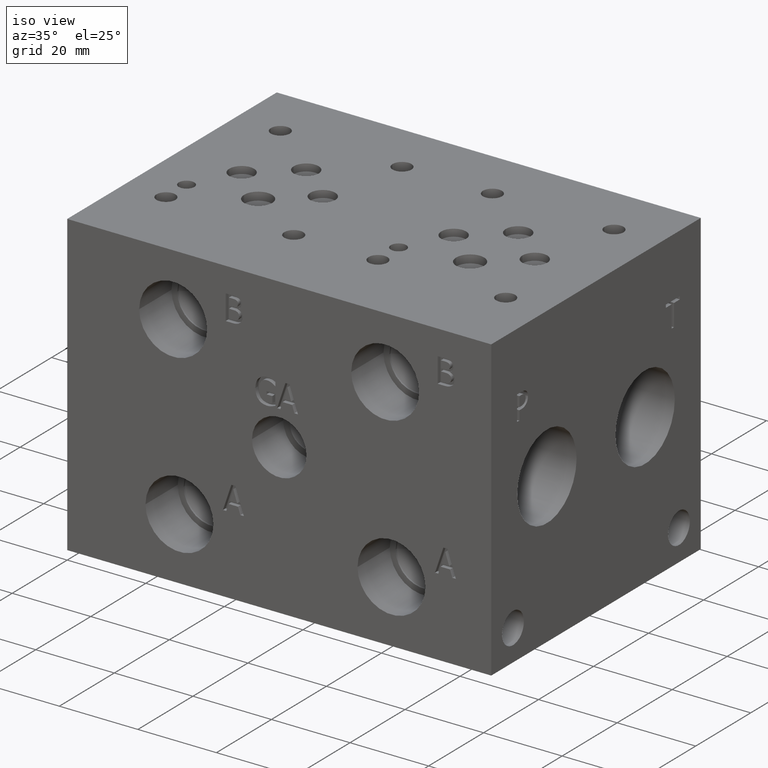
[diagram: clean part render]
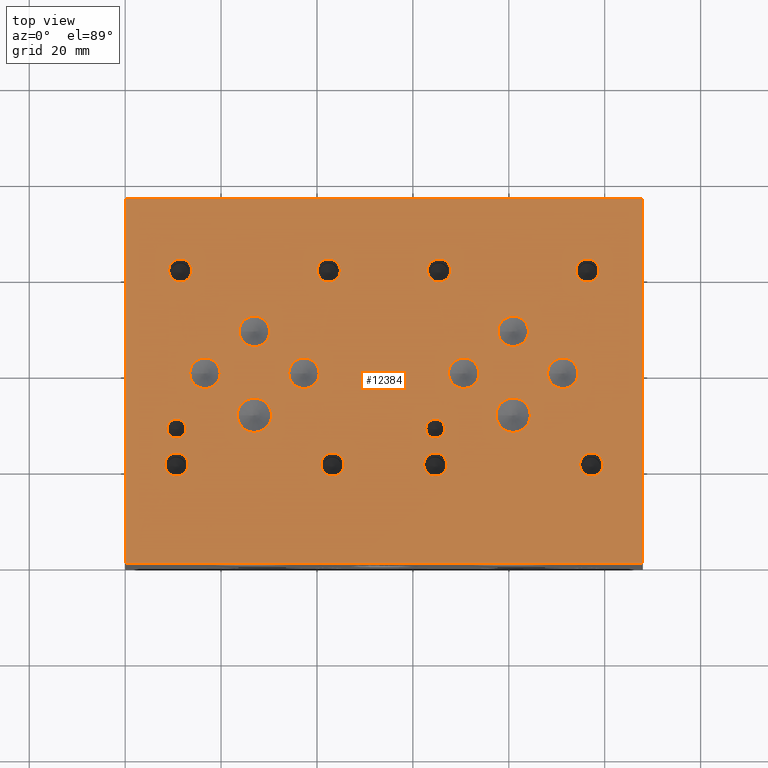
[diagram: tour spotlight — one face highlighted and labeled with its STEP entity id]
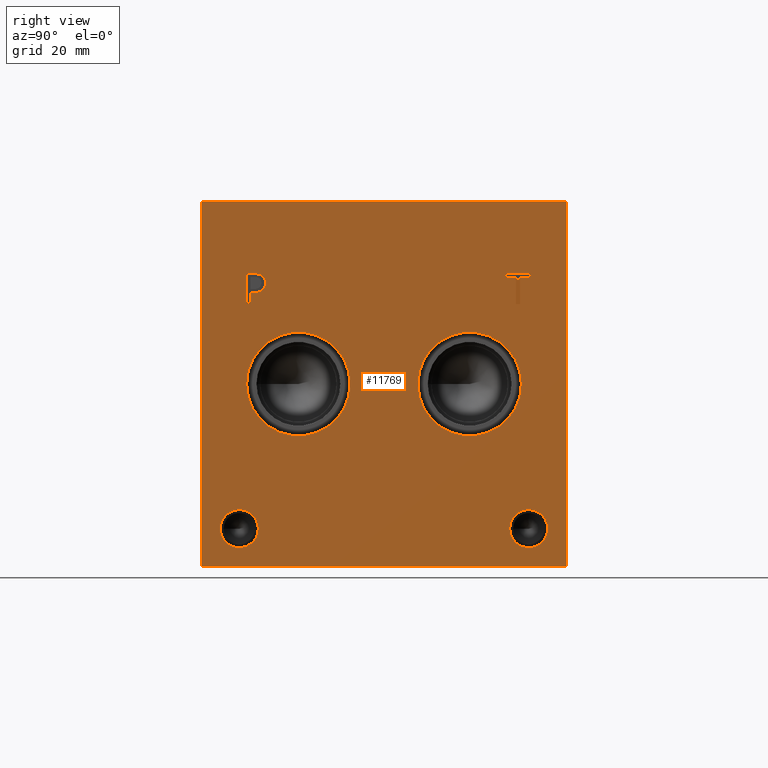
[diagram: tour spotlight — one face highlighted and labeled with its STEP entity id]
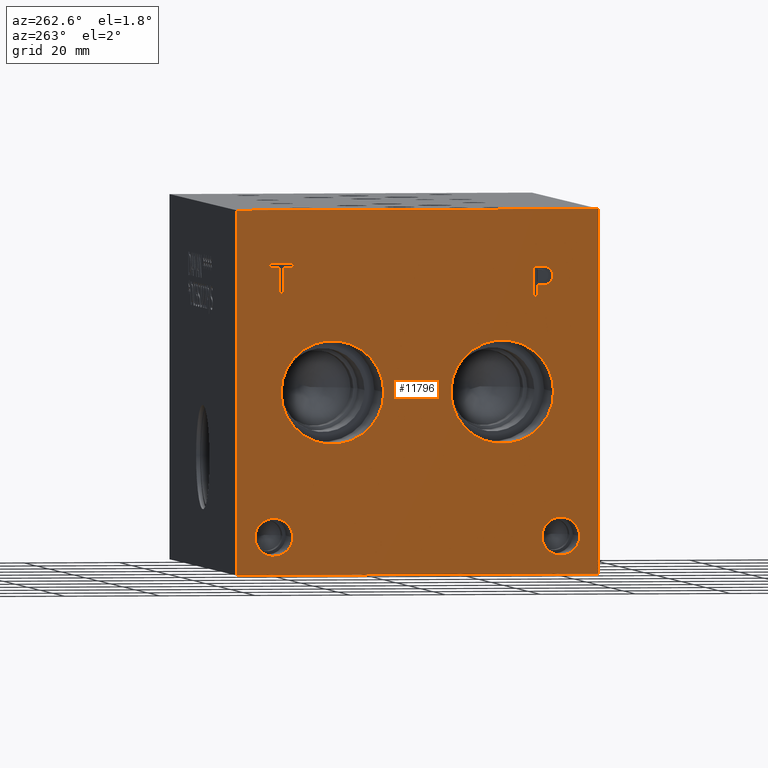
[diagram: tour spotlight — one face highlighted and labeled with its STEP entity id]
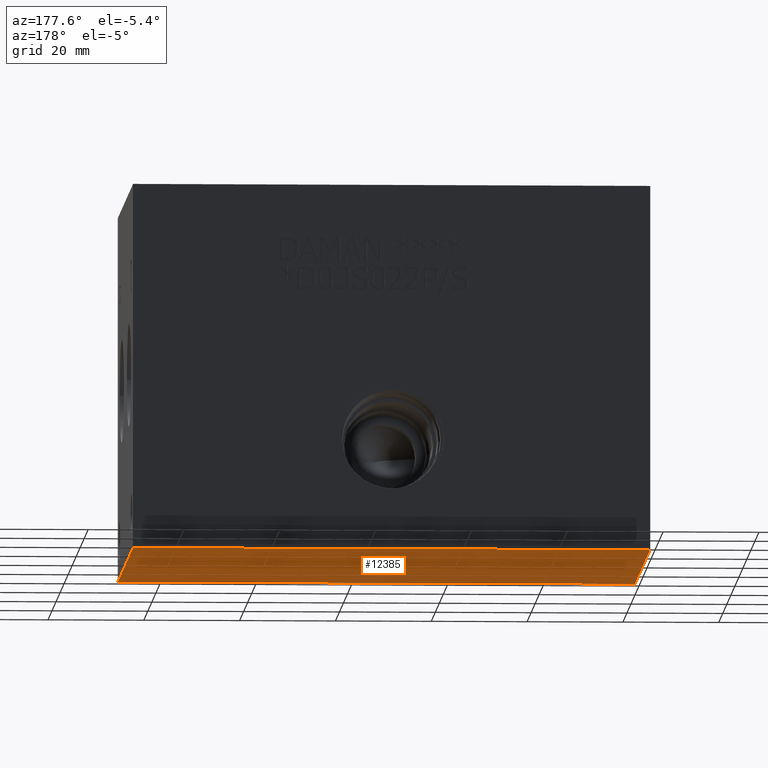
[diagram: tour spotlight — one face highlighted and labeled with its STEP entity id]
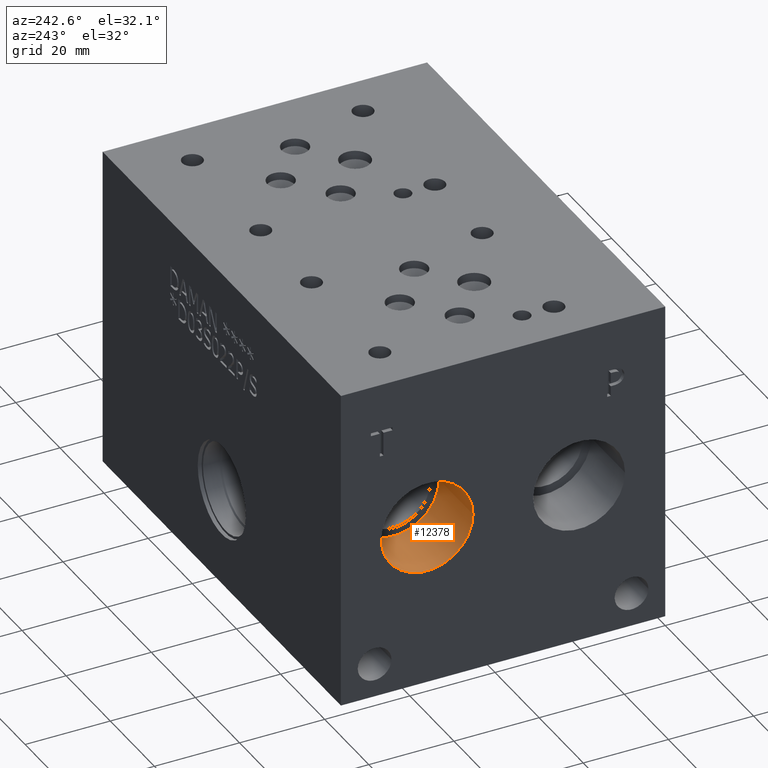
[diagram: tour spotlight — one face highlighted and labeled with its STEP entity id]
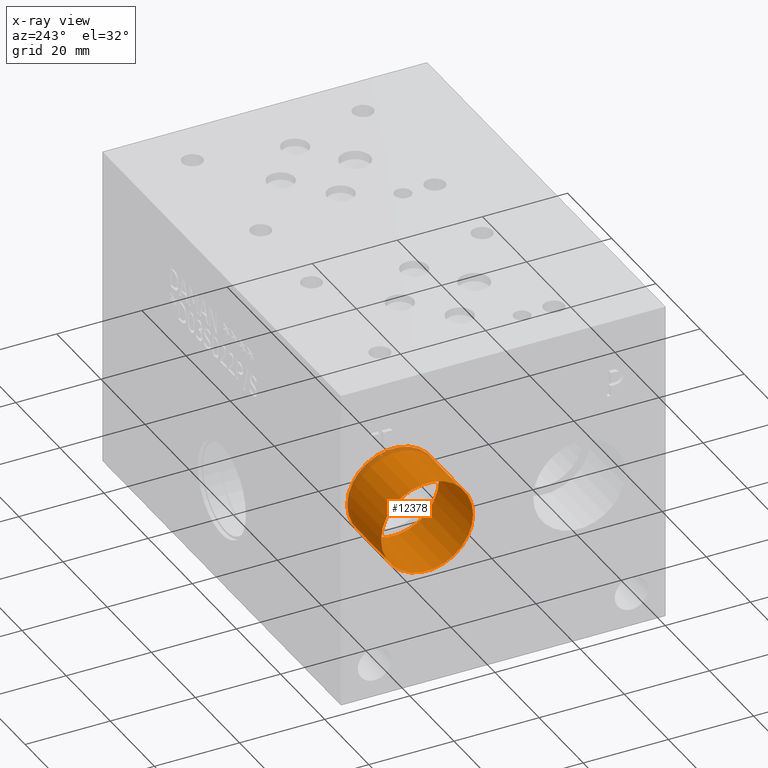
[diagram: x-ray of the same camera — body ghosted, this tour face saturated]
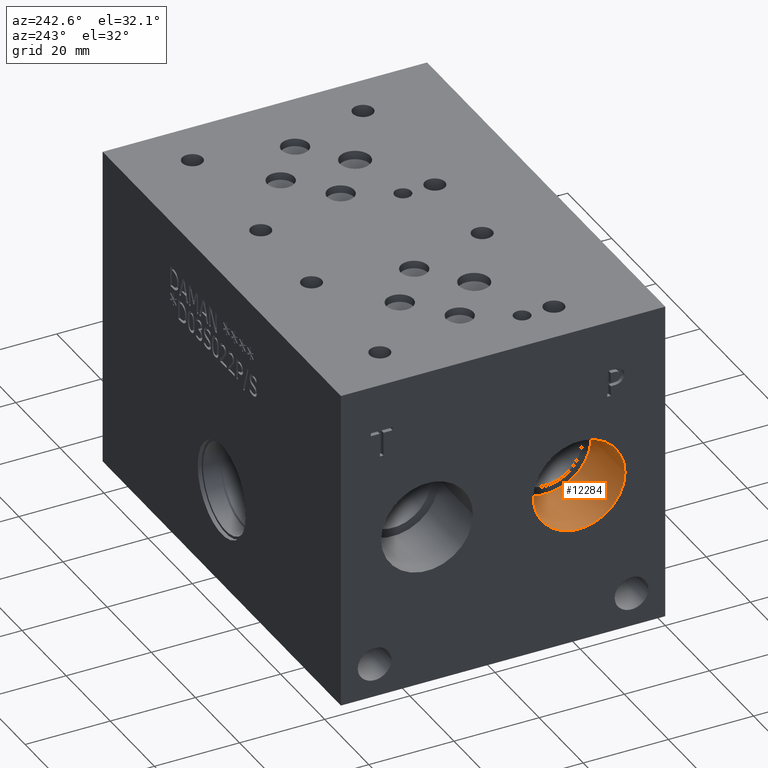
[diagram: tour spotlight — one face highlighted and labeled with its STEP entity id]
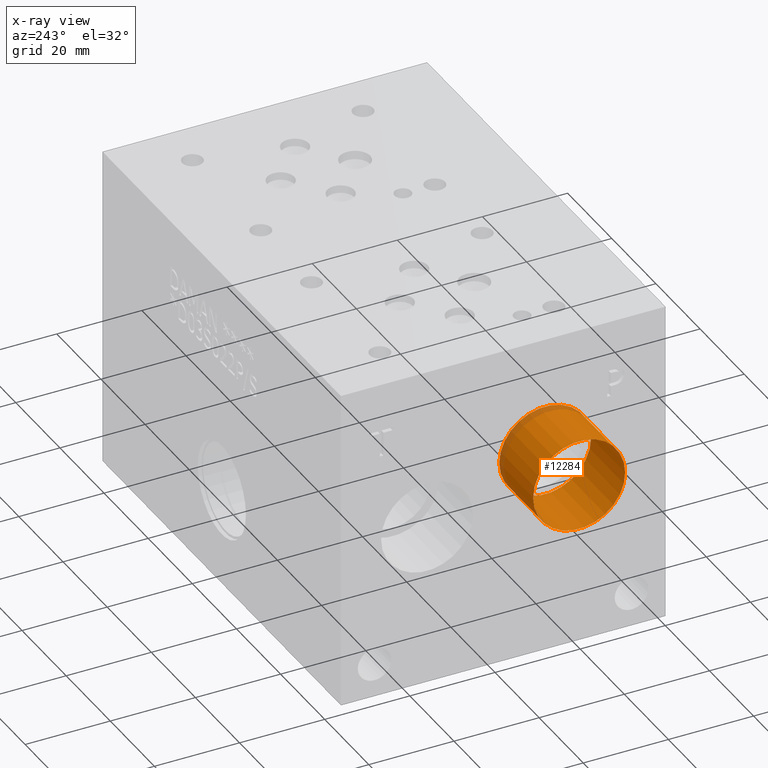
[diagram: x-ray of the same camera — body ghosted, this tour face saturated]
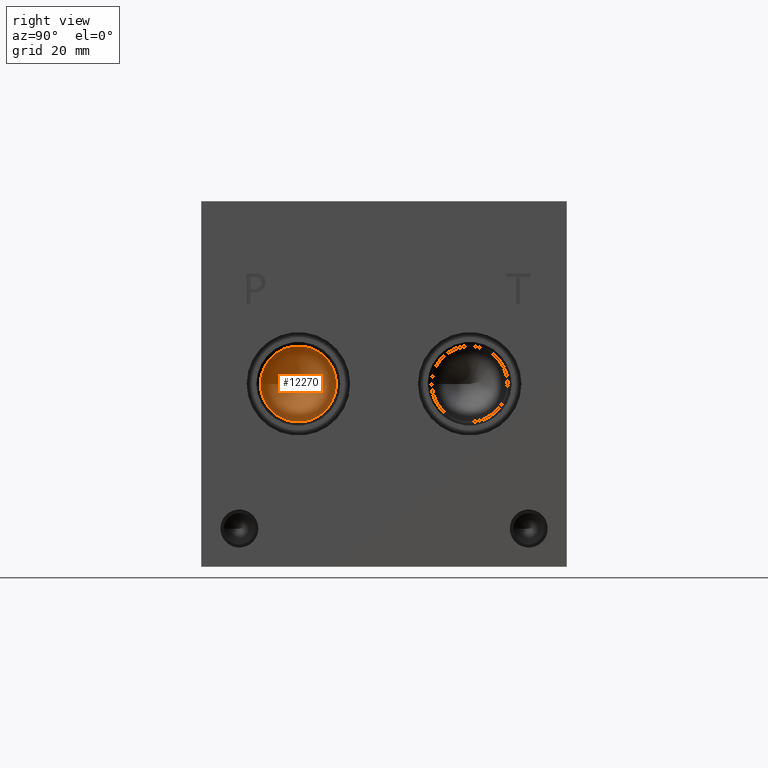
[diagram: tour spotlight — one face highlighted and labeled with its STEP entity id]
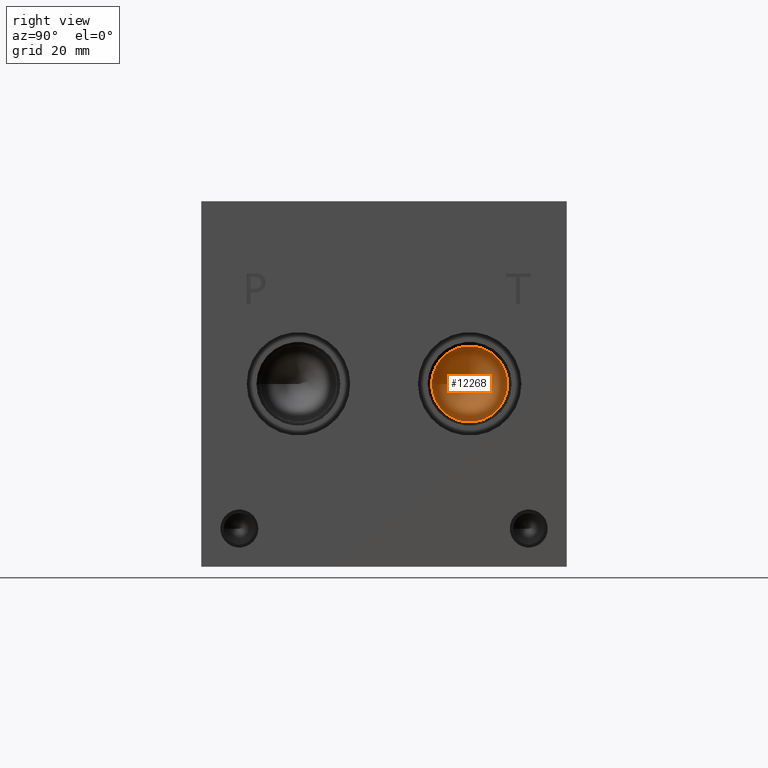
[diagram: tour spotlight — one face highlighted and labeled with its STEP entity id]
A machine part: a face-by-face anatomy tour. The part has 634 B-rep faces; the first image is the clean iso view, then the 8 largest visible faces are spotlighted one at a time (largest first), each with its STEP entity span.

Face 1 — top view, entity #12384. In plain terms, the highlighted planar face has unit normal (0, 0, 1).
Definition (entity closure, byte-faithful):
#190=CIRCLE('',#12833,3.5687);
#191=CIRCLE('',#12834,3.5687);
#194=CIRCLE('',#12839,3.5687);
#195=CIRCLE('',#12840,3.5687);
#198=CIRCLE('',#12845,3.175);
#199=CIRCLE('',#12846,3.175);
#202=CIRCLE('',#12851,3.175);
#203=CIRCLE('',#12852,3.175);
#206=CIRCLE('',#12857,3.175);
#207=CIRCLE('',#12858,3.175);
#210=CIRCLE('',#12863,3.175);
#211=CIRCLE('',#12864,3.175);
#214=CIRCLE('',#12869,3.175);
#215=CIRCLE('',#12870,3.175);
#218=CIRCLE('',#12875,3.175);
#219=CIRCLE('',#12876,3.175);
#222=CIRCLE('',#12881,1.9812);
#223=CIRCLE('',#12882,1.9812);
#226=CIRCLE('',#12887,1.9812);
#227=CIRCLE('',#12888,1.9812);
#233=CIRCLE('',#12897,2.413);
#234=CIRCLE('',#12898,2.413);
#240=CIRCLE('',#12908,2.413);
#241=CIRCLE('',#12909,2.413);
#247=CIRCLE('',#12919,2.413);
#248=CIRCLE('',#12920,2.413);
#254=CIRCLE('',#12930,2.413);
#255=CIRCLE('',#12931,2.413);
#261=CIRCLE('',#12941,2.413);
#262=CIRCLE('',#12942,2.413);
#268=CIRCLE('',#12952,2.413);
#269=CIRCLE('',#12953,2.413);
#275=CIRCLE('',#12963,2.413);
#276=CIRCLE('',#12964,2.413);
#282=CIRCLE('',#12974,2.413);
#283=CIRCLE('',#12975,2.413);
#421=FACE_BOUND('',#2145,.T.);
#422=FACE_BOUND('',#2146,.T.);
#423=FACE_BOUND('',#2147,.T.);
#424=FACE_BOUND('',#2148,.T.);
#425=FACE_BOUND('',#2149,.T.);
#426=FACE_BOUND('',#2150,.T.);
#427=FACE_BOUND('',#2151,.T.);
#428=FACE_BOUND('',#2152,.T.);
#429=FACE_BOUND('',#2153,.T.);
#430=FACE_BOUND('',#2154,.T.);
#431=FACE_BOUND('',#2155,.T.);
#432=FACE_BOUND('',#2156,.T.);
#433=FACE_BOUND('',#2157,.T.);
#434=FACE_BOUND('',#2158,.T.);
#435=FACE_BOUND('',#2159,.T.);
#436=FACE_BOUND('',#2160,.T.);
#437=FACE_BOUND('',#2161,.T.);
#438=FACE_BOUND('',#2162,.T.);
#792=PLANE('',#13076);
#1426=FACE_OUTER_BOUND('',#2144,.T.);
#2144=EDGE_LOOP('',(#11040,#11041,#11042,#11043));
#2145=EDGE_LOOP('',(#11044,#11045));
#2146=EDGE_LOOP('',(#11046,#11047));
#2147=EDGE_LOOP('',(#11048,#11049));
#2148=EDGE_LOOP('',(#11050,#11051));
#2149=EDGE_LOOP('',(#11052,#11053));
#2150=EDGE_LOOP('',(#11054,#11055));
#2151=EDGE_LOOP('',(#11056,#11057));
#2152=EDGE_LOOP('',(#11058,#11059));
#2153=EDGE_LOOP('',(#11060,#11061));
#2154=EDGE_LOOP('',(#11062,#11063));
#2155=EDGE_LOOP('',(#11064,#11065));
#2156=EDGE_LOOP('',(#11066,#11067));
#2157=EDGE_LOOP('',(#11068,#11069));
#2158=EDGE_LOOP('',(#11070,#11071));
#2159=EDGE_LOOP('',(#11072,#11073));
#2160=EDGE_LOOP('',(#11074,#11075));
#2161=EDGE_LOOP('',(#11076,#11077));
#2162=EDGE_LOOP('',(#11078,#11079));
#2198=LINE('',#15773,#3326);
#2258=LINE('',#16048,#3386);
#2574=LINE('',#18626,#3702);
#3021=LINE('',#19914,#4149);
#3326=VECTOR('',#13134,10.);
#3386=VECTOR('',#13248,10.);
#3702=VECTOR('',#13732,10.);
#4149=VECTOR('',#14501,10.);
#4812=VERTEX_POINT('',#15770);
#4813=VERTEX_POINT('',#15772);
#4872=VERTEX_POINT('',#16045);
#4873=VERTEX_POINT('',#16047);
#5783=VERTEX_POINT('',#20920);
#5784=VERTEX_POINT('',#20921);
#5788=VERTEX_POINT('',#20933);
#5789=VERTEX_POINT('',#20934);
#5793=VERTEX_POINT('',#20946);
#5794=VERTEX_POINT('',#20947);
#5798=VERTEX_POINT('',#20959);
#5799=VERTEX_POINT('',#20960);
#5803=VERTEX_POINT('',#20972);
#5804=VERTEX_POINT('',#20973);
#5808=VERTEX_POINT('',#20985);
#5809=VERTEX_POINT('',#20986);
#5813=VERTEX_POINT('',#20998);
#5814=VERTEX_POINT('',#20999);
#5818=VERTEX_POINT('',#21011);
#5819=VERTEX_POINT('',#21012);
#5823=VERTEX_POINT('',#21024);
#5824=VERTEX_POINT('',#21025);
#5828=VERTEX_POINT('',#21037);
#5829=VERTEX_POINT('',#21038);
#5836=VERTEX_POINT('',#21057);
#5837=VERTEX_POINT('',#21058);
#5844=VERTEX_POINT('',#21079);
#5845=VERTEX_POINT('',#21080);
#5852=VERTEX_POINT('',#21101);
#5853=VERTEX_POINT('',#21102);
#5860=VERTEX_POINT('',#21123);
#5861=VERTEX_POINT('',#21124);
#5868=VERTEX_POINT('',#21145);
#5869=VERTEX_POINT('',#21146);
#5876=VERTEX_POINT('',#21167);
#5877=VERTEX_POINT('',#21168);
#5884=VERTEX_POINT('',#21189);
#5885=VERTEX_POINT('',#21190);
#5892=VERTEX_POINT('',#21211);
#5893=VERTEX_POINT('',#21212);
#6007=EDGE_CURVE('',#4813,#4812,#2198,.T.);
#6091=EDGE_CURVE('',#4873,#4872,#2258,.T.);
#6641=EDGE_CURVE('',#4812,#4873,#2574,.T.);
#7134=EDGE_CURVE('',#4872,#4813,#3021,.T.);
#7444=EDGE_CURVE('',#5783,#5784,#190,.T.);
#7445=EDGE_CURVE('',#5784,#5783,#191,.T.);
#7450=EDGE_CURVE('',#5788,#5789,#194,.T.);
#7451=EDGE_CURVE('',#5789,#5788,#195,.T.);
#7456=EDGE_CURVE('',#5793,#5794,#198,.T.);
#7457=EDGE_CURVE('',#5794,#5793,#199,.T.);
#7462=EDGE_CURVE('',#5798,#5799,#202,.T.);
#7463=EDGE_CURVE('',#5799,#5798,#203,.T.);
#7468=EDGE_CURVE('',#5803,#5804,#206,.T.);
#7469=EDGE_CURVE('',#5804,#5803,#207,.T.);
#7474=EDGE_CURVE('',#5808,#5809,#210,.T.);
#7475=EDGE_CURVE('',#5809,#5808,#211,.T.);
#7480=EDGE_CURVE('',#5813,#5814,#214,.T.);
#7481=EDGE_CURVE('',#5814,#5813,#215,.T.);
#7486=EDGE_CURVE('',#5818,#5819,#218,.T.);
#7487=EDGE_CURVE('',#5819,#5818,#219,.T.);
#7492=EDGE_CURVE('',#5823,#5824,#222,.T.);
#7493=EDGE_CURVE('',#5824,#5823,#223,.T.);
#7498=EDGE_CURVE('',#5828,#5829,#226,.T.);
#7499=EDGE_CURVE('',#5829,#5828,#227,.T.);
#7507=EDGE_CURVE('',#5836,#5837,#233,.T.);
#7508=EDGE_CURVE('',#5837,#5836,#234,.T.);
#7517=EDGE_CURVE('',#5844,#5845,#240,.T.);
#7518=EDGE_CURVE('',#5845,#5844,#241,.T.);
#7527=EDGE_CURVE('',#5852,#5853,#247,.T.);
#7528=EDGE_CURVE('',#5853,#5852,#248,.T.);
#7537=EDGE_CURVE('',#5860,#5861,#254,.T.);
#7538=EDGE_CURVE('',#5861,#5860,#255,.T.);
#7547=EDGE_CURVE('',#5868,#5869,#261,.T.);
#7548=EDGE_CURVE('',#5869,#5868,#262,.T.);
#7557=EDGE_CURVE('',#5876,#5877,#268,.T.);
#7558=EDGE_CURVE('',#5877,#5876,#269,.T.);
#7567=EDGE_CURVE('',#5884,#5885,#275,.T.);
#7568=EDGE_CURVE('',#5885,#5884,#276,.T.);
#7577=EDGE_CURVE('',#5892,#5893,#282,.T.);
#7578=EDGE_CURVE('',#5893,#5892,#283,.T.);
#11040=ORIENTED_EDGE('',*,*,#7134,.T.);
#11041=ORIENTED_EDGE('',*,*,#6007,.T.);
#11042=ORIENTED_EDGE('',*,*,#6641,.T.);
#11043=ORIENTED_EDGE('',*,*,#6091,.T.);
#11044=ORIENTED_EDGE('',*,*,#7444,.T.);
#11045=ORIENTED_EDGE('',*,*,#7445,.T.);
#11046=ORIENTED_EDGE('',*,*,#7450,.T.);
#11047=ORIENTED_EDGE('',*,*,#7451,.T.);
#11048=ORIENTED_EDGE('',*,*,#7456,.T.);
#11049=ORIENTED_EDGE('',*,*,#7457,.T.);
#11050=ORIENTED_EDGE('',*,*,#7462,.T.);
#11051=ORIENTED_EDGE('',*,*,#7463,.T.);
#11052=ORIENTED_EDGE('',*,*,#7468,.T.);
#11053=ORIENTED_EDGE('',*,*,#7469,.T.);
#11054=ORIENTED_EDGE('',*,*,#7474,.T.);
#11055=ORIENTED_EDGE('',*,*,#7475,.T.);
#11056=ORIENTED_EDGE('',*,*,#7480,.T.);
#11057=ORIENTED_EDGE('',*,*,#7481,.T.);
#11058=ORIENTED_EDGE('',*,*,#7486,.T.);
#11059=ORIENTED_EDGE('',*,*,#7487,.T.);
#11060=ORIENTED_EDGE('',*,*,#7492,.T.);
#11061=ORIENTED_EDGE('',*,*,#7493,.T.);
#11062=ORIENTED_EDGE('',*,*,#7498,.T.);
#11063=ORIENTED_EDGE('',*,*,#7499,.T.);
#11064=ORIENTED_EDGE('',*,*,#7507,.T.);
#11065=ORIENTED_EDGE('',*,*,#7508,.T.);
#11066=ORIENTED_EDGE('',*,*,#7517,.T.);
#11067=ORIENTED_EDGE('',*,*,#7518,.T.);
#11068=ORIENTED_EDGE('',*,*,#7527,.T.);
#11069=ORIENTED_EDGE('',*,*,#7528,.T.);
#11070=ORIENTED_EDGE('',*,*,#7537,.T.);
#11071=ORIENTED_EDGE('',*,*,#7538,.T.);
#11072=ORIENTED_EDGE('',*,*,#7547,.T.);
#11073=ORIENTED_EDGE('',*,*,#7548,.T.);
#11074=ORIENTED_EDGE('',*,*,#7557,.T.);
#11075=ORIENTED_EDGE('',*,*,#7558,.T.);
#11076=ORIENTED_EDGE('',*,*,#7567,.T.);
#11077=ORIENTED_EDGE('',*,*,#7568,.T.);
#11078=ORIENTED_EDGE('',*,*,#7577,.T.);
#11079=ORIENTED_EDGE('',*,*,#7578,.T.);
#12384=ADVANCED_FACE('',(#1426,#421,#422,#423,#424,#425,#426,#427,#428,
#429,#430,#431,#432,#433,#434,#435,#436,#437,#438),#792,.T.);
#12833=AXIS2_PLACEMENT_3D('',#20922,#14999,#15000);
#12834=AXIS2_PLACEMENT_3D('',#20923,#15001,#15002);
#12839=AXIS2_PLACEMENT_3D('',#20935,#15013,#15014);
#12840=AXIS2_PLACEMENT_3D('',#20936,#15015,#15016);
#12845=AXIS2_PLACEMENT_3D('',#20948,#15027,#15028);
#12846=AXIS2_PLACEMENT_3D('',#20949,#15029,#15030);
#12851=AXIS2_PLACEMENT_3D('',#20961,#15041,#15042);
#12852=AXIS2_PLACEMENT_3D('',#20962,#15043,#15044);
#12857=AXIS2_PLACEMENT_3D('',#20974,#15055,#15056);
#12858=AXIS2_PLACEMENT_3D('',#20975,#15057,#15058);
#12863=AXIS2_PLACEMENT_3D('',#20987,#15069,#15070);
#12864=AXIS2_PLACEMENT_3D('',#20988,#15071,#15072);
#12869=AXIS2_PLACEMENT_3D('',#21000,#15083,#15084);
#12870=AXIS2_PLACEMENT_3D('',#21001,#15085,#15086);
#12875=AXIS2_PLACEMENT_3D('',#21013,#15097,#15098);
#12876=AXIS2_PLACEMENT_3D('',#21014,#15099,#15100);
#12881=AXIS2_PLACEMENT_3D('',#21026,#15111,#15112);
#12882=AXIS2_PLACEMENT_3D('',#21027,#15113,#15114);
#12887=AXIS2_PLACEMENT_3D('',#21039,#15125,#15126);
#12888=AXIS2_PLACEMENT_3D('',#21040,#15127,#15128);
#12897=AXIS2_PLACEMENT_3D('',#21059,#15147,#15148);
#12898=AXIS2_PLACEMENT_3D('',#21060,#15149,#15150);
#12908=AXIS2_PLACEMENT_3D('',#21081,#15172,#15173);
#12909=AXIS2_PLACEMENT_3D('',#21082,#15174,#15175);
#12919=AXIS2_PLACEMENT_3D('',#21103,#15197,#15198);
#12920=AXIS2_PLACEMENT_3D('',#21104,#15199,#15200);
#12930=AXIS2_PLACEMENT_3D('',#21125,#15222,#15223);
#12931=AXIS2_PLACEMENT_3D('',#21126,#15224,#15225);
#12941=AXIS2_PLACEMENT_3D('',#21147,#15247,#15248);
#12942=AXIS2_PLACEMENT_3D('',#21148,#15249,#15250);
#12952=AXIS2_PLACEMENT_3D('',#21169,#15272,#15273);
#12953=AXIS2_PLACEMENT_3D('',#21170,#15274,#15275);
#12963=AXIS2_PLACEMENT_3D('',#21191,#15297,#15298);
#12964=AXIS2_PLACEMENT_3D('',#21192,#15299,#15300);
#12974=AXIS2_PLACEMENT_3D('',#21213,#15322,#15323);
#12975=AXIS2_PLACEMENT_3D('',#21214,#15324,#15325);
#13076=AXIS2_PLACEMENT_3D('',#21412,#15560,#15561);
#13134=DIRECTION('',(0.,1.,0.));
#13248=DIRECTION('',(0.,-1.,0.));
#13732=DIRECTION('',(-1.,0.,0.));
#14501=DIRECTION('',(1.,0.,0.));
#14999=DIRECTION('center_axis',(0.,0.,-1.));
#15000=DIRECTION('ref_axis',(1.,0.,0.));
#15001=DIRECTION('center_axis',(0.,0.,-1.));
#15002=DIRECTION('ref_axis',(1.,0.,0.));
#15013=DIRECTION('center_axis',(0.,0.,-1.));
#15014=DIRECTION('ref_axis',(1.,0.,0.));
#15015=DIRECTION('center_axis',(0.,0.,-1.));
#15016=DIRECTION('ref_axis',(1.,0.,0.));
#15027=DIRECTION('center_axis',(0.,0.,-1.));
#15028=DIRECTION('ref_axis',(1.,0.,0.));
#15029=DIRECTION('center_axis',(0.,0.,-1.));
#15030=DIRECTION('ref_axis',(1.,0.,0.));
#15041=DIRECTION('center_axis',(0.,0.,-1.));
#15042=DIRECTION('ref_axis',(1.,0.,0.));
#15043=DIRECTION('center_axis',(0.,0.,-1.));
#15044=DIRECTION('ref_axis',(1.,0.,0.));
#15055=DIRECTION('center_axis',(0.,0.,-1.));
#15056=DIRECTION('ref_axis',(1.,0.,0.));
#15057=DIRECTION('center_axis',(0.,0.,-1.));
#15058=DIRECTION('ref_axis',(1.,0.,0.));
#15069=DIRECTION('center_axis',(0.,0.,-1.));
#15070=DIRECTION('ref_axis',(1.,0.,0.));
#15071=DIRECTION('center_axis',(0.,0.,-1.));
#15072=DIRECTION('ref_axis',(1.,0.,0.));
#15083=DIRECTION('center_axis',(0.,0.,-1.));
#15084=DIRECTION('ref_axis',(1.,0.,0.));
#15085=DIRECTION('center_axis',(0.,0.,-1.));
#15086=DIRECTION('ref_axis',(1.,0.,0.));
#15097=DIRECTION('center_axis',(0.,0.,-1.));
#15098=DIRECTION('ref_axis',(1.,0.,0.));
#15099=DIRECTION('center_axis',(0.,0.,-1.));
#15100=DIRECTION('ref_axis',(1.,0.,0.));
#15111=DIRECTION('center_axis',(0.,0.,-1.));
#15112=DIRECTION('ref_axis',(1.,0.,0.));
#15113=DIRECTION('center_axis',(0.,0.,-1.));
#15114=DIRECTION('ref_axis',(1.,0.,0.));
#15125=DIRECTION('center_axis',(0.,0.,-1.));
#15126=DIRECTION('ref_axis',(1.,0.,0.));
#15127=DIRECTION('center_axis',(0.,0.,-1.));
#15128=DIRECTION('ref_axis',(1.,0.,0.));
#15147=DIRECTION('center_axis',(0.,0.,-1.));
#15148=DIRECTION('ref_axis',(1.,0.,0.));
#15149=DIRECTION('center_axis',(0.,0.,-1.));
#15150=DIRECTION('ref_axis',(1.,0.,0.));
#15172=DIRECTION('center_axis',(0.,0.,-1.));
#15173=DIRECTION('ref_axis',(1.,0.,0.));
#15174=DIRECTION('center_axis',(0.,0.,-1.));
#15175=DIRECTION('ref_axis',(1.,0.,0.));
#15197=DIRECTION('center_axis',(0.,0.,-1.));
#15198=DIRECTION('ref_axis',(1.,0.,0.));
#15199=DIRECTION('center_axis',(0.,0.,-1.));
#15200=DIRECTION('ref_axis',(1.,0.,0.));
#15222=DIRECTION('center_axis',(0.,0.,-1.));
#15223=DIRECTION('ref_axis',(1.,0.,0.));
#15224=DIRECTION('center_axis',(0.,0.,-1.));
#15225=DIRECTION('ref_axis',(1.,0.,0.));
#15247=DIRECTION('center_axis',(0.,0.,-1.));
#15248=DIRECTION('ref_axis',(1.,0.,0.));
#15249=DIRECTION('center_axis',(0.,0.,-1.));
#15250=DIRECTION('ref_axis',(1.,0.,0.));
#15272=DIRECTION('center_axis',(0.,0.,-1.));
#15273=DIRECTION('ref_axis',(1.,0.,0.));
#15274=DIRECTION('center_axis',(0.,0.,-1.));
#15275=DIRECTION('ref_axis',(1.,0.,0.));
#15297=DIRECTION('center_axis',(0.,0.,-1.));
#15298=DIRECTION('ref_axis',(1.,0.,0.));
#15299=DIRECTION('center_axis',(0.,0.,-1.));
#15300=DIRECTION('ref_axis',(1.,0.,0.));
#15322=DIRECTION('center_axis',(0.,0.,-1.));
#15323=DIRECTION('ref_axis',(1.,0.,0.));
#15324=DIRECTION('center_axis',(0.,0.,-1.));
#15325=DIRECTION('ref_axis',(1.,0.,0.));
#15560=DIRECTION('center_axis',(0.,0.,1.));
#15561=DIRECTION('ref_axis',(1.,0.,0.));
#15770=CARTESIAN_POINT('',(107.95,76.2,76.2));
#15772=CARTESIAN_POINT('',(107.95,0.,76.2));
#15773=CARTESIAN_POINT('',(107.95,0.,76.2));
#16045=CARTESIAN_POINT('',(0.,0.,76.2));
#16047=CARTESIAN_POINT('',(0.,76.2,76.2));
#16048=CARTESIAN_POINT('',(0.,76.2,76.2));
#18626=CARTESIAN_POINT('',(107.95,76.2,76.2));
#19914=CARTESIAN_POINT('',(0.,0.,76.2));
#20920=CARTESIAN_POINT('',(30.5181,30.9372,76.2));
#20921=CARTESIAN_POINT('',(23.3807,30.9372,76.2));
#20922=CARTESIAN_POINT('Origin',(26.9494,30.9372,76.2));
#20923=CARTESIAN_POINT('Origin',(26.9494,30.9372,76.2));
#20933=CARTESIAN_POINT('',(84.4931,30.9372,76.2));
#20934=CARTESIAN_POINT('',(77.3557,30.9372,76.2));
#20935=CARTESIAN_POINT('Origin',(80.9244,30.9372,76.2));
#20936=CARTESIAN_POINT('Origin',(80.9244,30.9372,76.2));
#20946=CARTESIAN_POINT('',(94.4372,39.6748,76.2));
#20947=CARTESIAN_POINT('',(88.0872,39.6748,76.2));
#20948=CARTESIAN_POINT('Origin',(91.2622,39.6748,76.2));
#20949=CARTESIAN_POINT('Origin',(91.2622,39.6748,76.2));
#20959=CARTESIAN_POINT('',(30.1244,48.4124,76.2));
#20960=CARTESIAN_POINT('',(23.7744,48.4124,76.2));
#20961=CARTESIAN_POINT('Origin',(26.9494,48.4124,76.2));
#20962=CARTESIAN_POINT('Origin',(26.9494,48.4124,76.2));
#20972=CARTESIAN_POINT('',(19.812,39.6748,76.2));
#20973=CARTESIAN_POINT('',(13.462,39.6748,76.2));
#20974=CARTESIAN_POINT('Origin',(16.637,39.6748,76.2));
#20975=CARTESIAN_POINT('Origin',(16.637,39.6748,76.2));
#20985=CARTESIAN_POINT('',(40.4622,39.6748,76.2));
#20986=CARTESIAN_POINT('',(34.1122,39.6748,76.2));
#20987=CARTESIAN_POINT('Origin',(37.2872,39.6748,76.2));
#20988=CARTESIAN_POINT('Origin',(37.2872,39.6748,76.2));
#20998=CARTESIAN_POINT('',(73.787,39.6748,76.2));
#20999=CARTESIAN_POINT('',(67.437,39.6748,76.2));
#21000=CARTESIAN_POINT('Origin',(70.612,39.6748,76.2));
#21001=CARTESIAN_POINT('Origin',(70.612,39.6748,76.2));
#21011=CARTESIAN_POINT('',(84.0994,48.4124,76.2));
#21012=CARTESIAN_POINT('',(77.7494,48.4124,76.2));
#21013=CARTESIAN_POINT('Origin',(80.9244,48.4124,76.2));
#21014=CARTESIAN_POINT('Origin',(80.9244,48.4124,76.2));
#21024=CARTESIAN_POINT('',(12.6746,28.1178,76.2));
#21025=CARTESIAN_POINT('',(8.7122,28.1178,76.2));
#21026=CARTESIAN_POINT('Origin',(10.6934,28.1178,76.2));
#21027=CARTESIAN_POINT('Origin',(10.6934,28.1178,76.2));
#21037=CARTESIAN_POINT('',(66.6496,28.1178,76.2));
#21038=CARTESIAN_POINT('',(62.6872,28.1178,76.2));
#21039=CARTESIAN_POINT('Origin',(64.6684,28.1178,76.2));
#21040=CARTESIAN_POINT('Origin',(64.6684,28.1178,76.2));
#21057=CARTESIAN_POINT('',(99.6188,20.6248,76.2));
#21058=CARTESIAN_POINT('',(94.7928,20.6248,76.2));
#21059=CARTESIAN_POINT('Origin',(97.2058,20.6248,76.2));
#21060=CARTESIAN_POINT('Origin',(97.2058,20.6248,76.2));
#21079=CARTESIAN_POINT('',(67.8688,61.1124,76.2));
#21080=CARTESIAN_POINT('',(63.0428,61.1124,76.2));
#21081=CARTESIAN_POINT('Origin',(65.4558,61.1124,76.2));
#21082=CARTESIAN_POINT('Origin',(65.4558,61.1124,76.2));
#21101=CARTESIAN_POINT('',(45.6438,20.6248,76.2));
#21102=CARTESIAN_POINT('',(40.8178,20.6248,76.2));
#21103=CARTESIAN_POINT('Origin',(43.2308,20.6248,76.2));
#21104=CARTESIAN_POINT('Origin',(43.2308,20.6248,76.2));
#21123=CARTESIAN_POINT('',(13.8938,61.1124,76.2));
#21124=CARTESIAN_POINT('',(9.0678,61.1124,76.2));
#21125=CARTESIAN_POINT('Origin',(11.4808,61.1124,76.2));
#21126=CARTESIAN_POINT('Origin',(11.4808,61.1124,76.2));
#21145=CARTESIAN_POINT('',(44.8564,61.1124,76.2));
#21146=CARTESIAN_POINT('',(40.0304,61.1124,76.2));
#21147=CARTESIAN_POINT('Origin',(42.4434,61.1124,76.2));
#21148=CARTESIAN_POINT('Origin',(42.4434,61.1124,76.2));
#21167=CARTESIAN_POINT('',(13.1064,20.6248,76.2));
#21168=CARTESIAN_POINT('',(8.2804,20.6248,76.2));
#21169=CARTESIAN_POINT('Origin',(10.6934,20.6248,76.2));
#21170=CARTESIAN_POINT('Origin',(10.6934,20.6248,76.2));
#21189=CARTESIAN_POINT('',(98.8314,61.1124,76.2));
#21190=CARTESIAN_POINT('',(94.0054,61.1124,76.2));
#21191=CARTESIAN_POINT('Origin',(96.4184,61.1124,76.2));
#21192=CARTESIAN_POINT('Origin',(96.4184,61.1124,76.2));
#21211=CARTESIAN_POINT('',(67.0814,20.6248,76.2));
#21212=CARTESIAN_POINT('',(62.2554,20.6248,76.2));
#21213=CARTESIAN_POINT('Origin',(64.6684,20.6248,76.2));
#21214=CARTESIAN_POINT('Origin',(64.6684,20.6248,76.2));
#21412=CARTESIAN_POINT('Origin',(53.975,38.1,76.2));

Face 2 — right view, entity #11769. In plain terms, the highlighted planar face has unit normal (1, 0, 0).
Definition (entity closure, byte-faithful):
#114=CIRCLE('',#12410,3.9624);
#115=CIRCLE('',#12411,3.9624);
#116=CIRCLE('',#12412,3.9624);
#117=CIRCLE('',#12413,3.9624);
#118=CIRCLE('',#12414,10.795);
#119=CIRCLE('',#12415,10.795);
#120=CIRCLE('',#12416,10.795);
#121=CIRCLE('',#12417,10.795);
#338=FACE_BOUND('',#1447,.T.);
#339=FACE_BOUND('',#1448,.T.);
#340=FACE_BOUND('',#1449,.T.);
#341=FACE_BOUND('',#1450,.T.);
#342=FACE_BOUND('',#1451,.T.);
#343=FACE_BOUND('',#1452,.T.);
#448=PLANE('',#12409);
#811=FACE_OUTER_BOUND('',#1446,.T.);
#1446=EDGE_LOOP('',(#7746,#7747,#7748,#7749));
#1447=EDGE_LOOP('',(#7750,#7751));
#1448=EDGE_LOOP('',(#7752,#7753));
#1449=EDGE_LOOP('',(#7754,#7755));
#1450=EDGE_LOOP('',(#7756,#7757));
#1451=EDGE_LOOP('',(#7758,#7759,#7760,#7761,#7762,#7763,#7764,#7765));
#1452=EDGE_LOOP('',(#7766,#7767,#7768,#7769,#7770,#7771,#7772,#7773,#7774));
#2180=LINE('',#15702,#3308);
#2183=LINE('',#15708,#3311);
#2186=LINE('',#15714,#3314);
#2189=LINE('',#15720,#3317);
#2192=LINE('',#15726,#3320);
#2196=LINE('',#15769,#3324);
#2197=LINE('',#15771,#3325);
#2198=LINE('',#15773,#3326);
#2199=LINE('',#15774,#3327);
#2200=LINE('',#15793,#3328);
#2201=LINE('',#15795,#3329);
#2202=LINE('',#15797,#3330);
#2203=LINE('',#15799,#3331);
#2204=LINE('',#15801,#3332);
#2205=LINE('',#15803,#3333);
#2206=LINE('',#15805,#3334);
#2207=LINE('',#15806,#3335);
#3308=VECTOR('',#13104,10.);
#3311=VECTOR('',#13109,10.);
#3314=VECTOR('',#13114,10.);
#3317=VECTOR('',#13119,10.);
#3320=VECTOR('',#13124,10.);
#3324=VECTOR('',#13132,10.);
#3325=VECTOR('',#13133,10.);
#3326=VECTOR('',#13134,10.);
#3327=VECTOR('',#13135,10.);
#3328=VECTOR('',#13152,10.);
#3329=VECTOR('',#13153,10.);
#3330=VECTOR('',#13154,10.);
#3331=VECTOR('',#13155,10.);
#3332=VECTOR('',#13156,10.);
#3333=VECTOR('',#13157,10.);
#3334=VECTOR('',#13158,10.);
#3335=VECTOR('',#13159,10.);
#4428=B_SPLINE_CURVE_WITH_KNOTS('',2,(#15669,#15670,#15671,#15672),
 .UNSPECIFIED.,.F.,.F.,(3,1,3),(0.,1.,2.),.UNSPECIFIED.);
#4430=B_SPLINE_CURVE_WITH_KNOTS('',2,(#15690,#15691,#15692,#15693),
 .UNSPECIFIED.,.F.,.F.,(3,1,3),(0.,1.,2.),.UNSPECIFIED.);
#4432=B_SPLINE_CURVE_WITH_KNOTS('',2,(#15739,#15740,#15741,#15742),
 .UNSPECIFIED.,.F.,.F.,(3,1,3),(0.,1.,2.),.UNSPECIFIED.);
#4434=B_SPLINE_CURVE_WITH_KNOTS('',2,(#15757,#15758,#15759,#15760),
 .UNSPECIFIED.,.F.,.F.,(3,1,3),(0.,1.,2.),.UNSPECIFIED.);
#4792=VERTEX_POINT('',#15667);
#4793=VERTEX_POINT('',#15668);
#4796=VERTEX_POINT('',#15689);
#4798=VERTEX_POINT('',#15701);
#4800=VERTEX_POINT('',#15707);
#4802=VERTEX_POINT('',#15713);
#4804=VERTEX_POINT('',#15719);
#4806=VERTEX_POINT('',#15725);
#4808=VERTEX_POINT('',#15738);
#4810=VERTEX_POINT('',#15767);
#4811=VERTEX_POINT('',#15768);
#4812=VERTEX_POINT('',#15770);
#4813=VERTEX_POINT('',#15772);
#4814=VERTEX_POINT('',#15775);
#4815=VERTEX_POINT('',#15776);
#4816=VERTEX_POINT('',#15779);
#4817=VERTEX_POINT('',#15780);
#4818=VERTEX_POINT('',#15783);
#4819=VERTEX_POINT('',#15784);
#4820=VERTEX_POINT('',#15787);
#4821=VERTEX_POINT('',#15788);
#4822=VERTEX_POINT('',#15791);
#4823=VERTEX_POINT('',#15792);
#4824=VERTEX_POINT('',#15794);
#4825=VERTEX_POINT('',#15796);
#4826=VERTEX_POINT('',#15798);
#4827=VERTEX_POINT('',#15800);
#4828=VERTEX_POINT('',#15802);
#4829=VERTEX_POINT('',#15804);
#5978=EDGE_CURVE('',#4792,#4793,#4428,.T.);
#5982=EDGE_CURVE('',#4796,#4792,#4430,.T.);
#5985=EDGE_CURVE('',#4798,#4796,#2180,.T.);
#5988=EDGE_CURVE('',#4800,#4798,#2183,.T.);
#5991=EDGE_CURVE('',#4802,#4800,#2186,.T.);
#5994=EDGE_CURVE('',#4804,#4802,#2189,.T.);
#5997=EDGE_CURVE('',#4806,#4804,#2192,.T.);
#6000=EDGE_CURVE('',#4808,#4806,#4432,.T.);
#6003=EDGE_CURVE('',#4793,#4808,#4434,.T.);
#6005=EDGE_CURVE('',#4810,#4811,#2196,.T.);
#6006=EDGE_CURVE('',#4811,#4812,#2197,.T.);
#6007=EDGE_CURVE('',#4813,#4812,#2198,.T.);
#6008=EDGE_CURVE('',#4810,#4813,#2199,.T.);
#6009=EDGE_CURVE('',#4814,#4815,#114,.T.);
#6010=EDGE_CURVE('',#4815,#4814,#115,.T.);
#6011=EDGE_CURVE('',#4816,#4817,#116,.T.);
#6012=EDGE_CURVE('',#4817,#4816,#117,.T.);
#6013=EDGE_CURVE('',#4818,#4819,#118,.T.);
#6014=EDGE_CURVE('',#4819,#4818,#119,.T.);
#6015=EDGE_CURVE('',#4820,#4821,#120,.T.);
#6016=EDGE_CURVE('',#4821,#4820,#121,.T.);
#6017=EDGE_CURVE('',#4822,#4823,#2200,.T.);
#6018=EDGE_CURVE('',#4823,#4824,#2201,.T.);
#6019=EDGE_CURVE('',#4824,#4825,#2202,.T.);
#6020=EDGE_CURVE('',#4825,#4826,#2203,.T.);
#6021=EDGE_CURVE('',#4826,#4827,#2204,.T.);
#6022=EDGE_CURVE('',#4827,#4828,#2205,.T.);
#6023=EDGE_CURVE('',#4828,#4829,#2206,.T.);
#6024=EDGE_CURVE('',#4829,#4822,#2207,.T.);
#7746=ORIENTED_EDGE('',*,*,#6005,.T.);
#7747=ORIENTED_EDGE('',*,*,#6006,.T.);
#7748=ORIENTED_EDGE('',*,*,#6007,.F.);
#7749=ORIENTED_EDGE('',*,*,#6008,.F.);
#7750=ORIENTED_EDGE('',*,*,#6009,.T.);
#7751=ORIENTED_EDGE('',*,*,#6010,.T.);
#7752=ORIENTED_EDGE('',*,*,#6011,.T.);
#7753=ORIENTED_EDGE('',*,*,#6012,.T.);
#7754=ORIENTED_EDGE('',*,*,#6013,.T.);
#7755=ORIENTED_EDGE('',*,*,#6014,.T.);
#7756=ORIENTED_EDGE('',*,*,#6015,.T.);
#7757=ORIENTED_EDGE('',*,*,#6016,.T.);
#7758=ORIENTED_EDGE('',*,*,#6017,.T.);
#7759=ORIENTED_EDGE('',*,*,#6018,.T.);
#7760=ORIENTED_EDGE('',*,*,#6019,.T.);
#7761=ORIENTED_EDGE('',*,*,#6020,.T.);
#7762=ORIENTED_EDGE('',*,*,#6021,.T.);
#7763=ORIENTED_EDGE('',*,*,#6022,.T.);
#7764=ORIENTED_EDGE('',*,*,#6023,.T.);
#7765=ORIENTED_EDGE('',*,*,#6024,.T.);
#7766=ORIENTED_EDGE('',*,*,#5978,.T.);
#7767=ORIENTED_EDGE('',*,*,#6003,.T.);
#7768=ORIENTED_EDGE('',*,*,#6000,.T.);
#7769=ORIENTED_EDGE('',*,*,#5997,.T.);
#7770=ORIENTED_EDGE('',*,*,#5994,.T.);
#7771=ORIENTED_EDGE('',*,*,#5991,.T.);
#7772=ORIENTED_EDGE('',*,*,#5988,.T.);
#7773=ORIENTED_EDGE('',*,*,#5985,.T.);
#7774=ORIENTED_EDGE('',*,*,#5982,.T.);
#11769=ADVANCED_FACE('',(#811,#338,#339,#340,#341,#342,#343),#448,.T.);
#12409=AXIS2_PLACEMENT_3D('',#15766,#13130,#13131);
#12410=AXIS2_PLACEMENT_3D('',#15777,#13136,#13137);
#12411=AXIS2_PLACEMENT_3D('',#15778,#13138,#13139);
#12412=AXIS2_PLACEMENT_3D('',#15781,#13140,#13141);
#12413=AXIS2_PLACEMENT_3D('',#15782,#13142,#13143);
#12414=AXIS2_PLACEMENT_3D('',#15785,#13144,#13145);
#12415=AXIS2_PLACEMENT_3D('',#15786,#13146,#13147);
#12416=AXIS2_PLACEMENT_3D('',#15789,#13148,#13149);
#12417=AXIS2_PLACEMENT_3D('',#15790,#13150,#13151);
#13104=DIRECTION('',(0.,1.,0.));
#13109=DIRECTION('',(0.,0.,1.));
#13114=DIRECTION('',(0.,-1.,0.));
#13119=DIRECTION('',(0.,0.,-1.));
#13124=DIRECTION('',(0.,-1.,0.));
#13130=DIRECTION('center_axis',(1.,0.,0.));
#13131=DIRECTION('ref_axis',(0.,1.,0.));
#13132=DIRECTION('',(0.,1.,0.));
#13133=DIRECTION('',(0.,0.,1.));
#13134=DIRECTION('',(0.,1.,0.));
#13135=DIRECTION('',(0.,0.,1.));
#13136=DIRECTION('center_axis',(-1.,0.,0.));
#13137=DIRECTION('ref_axis',(0.,1.,0.));
#13138=DIRECTION('center_axis',(-1.,0.,0.));
#13139=DIRECTION('ref_axis',(0.,1.,0.));
#13140=DIRECTION('center_axis',(-1.,0.,0.));
#13141=DIRECTION('ref_axis',(0.,1.,0.));
#13142=DIRECTION('center_axis',(-1.,0.,0.));
#13143=DIRECTION('ref_axis',(0.,1.,0.));
#13144=DIRECTION('center_axis',(-1.,0.,0.));
#13145=DIRECTION('ref_axis',(0.,1.,0.));
#13146=DIRECTION('center_axis',(-1.,0.,0.));
#13147=DIRECTION('ref_axis',(0.,1.,0.));
#13148=DIRECTION('center_axis',(-1.,0.,0.));
#13149=DIRECTION('ref_axis',(0.,1.,0.));
#13150=DIRECTION('center_axis',(-1.,0.,0.));
#13151=DIRECTION('ref_axis',(0.,1.,0.));
#13152=DIRECTION('',(0.,-1.,0.));
#13153=DIRECTION('',(0.,0.,1.));
#13154=DIRECTION('',(0.,-1.,0.));
#13155=DIRECTION('',(0.,0.,1.));
#13156=DIRECTION('',(0.,1.,0.));
#13157=DIRECTION('',(0.,0.,-1.));
#13158=DIRECTION('',(0.,-1.,0.));
#13159=DIRECTION('',(0.,0.,-1.));
#15667=CARTESIAN_POINT('',(107.95,12.6318172023594,60.7225181439707));
#15668=CARTESIAN_POINT('',(107.95,13.388259654532,59.2044873726039));
#15669=CARTESIAN_POINT('Ctrl Pts',(107.95,12.6318172023594,60.7225181439707));
#15670=CARTESIAN_POINT('Ctrl Pts',(107.95,12.9868820268486,60.4806623939564));
#15671=CARTESIAN_POINT('Ctrl Pts',(107.95,13.388259654532,59.7345116758269));
#15672=CARTESIAN_POINT('Ctrl Pts',(107.95,13.388259654532,59.2044873726039));
#15689=CARTESIAN_POINT('',(107.95,10.9697021543883,61.1187499046326));
#15690=CARTESIAN_POINT('Ctrl Pts',(107.95,10.9697021543883,61.1187499046326));
#15691=CARTESIAN_POINT('Ctrl Pts',(107.95,11.5357475267624,61.1187499046326));
#15692=CARTESIAN_POINT('Ctrl Pts',(107.95,12.328211048086,60.9334986918556));
#15693=CARTESIAN_POINT('Ctrl Pts',(107.95,12.6318172023594,60.7225181439707));
#15701=CARTESIAN_POINT('',(107.95,9.37448337769779,61.1187499046326));
#15702=CARTESIAN_POINT('',(107.95,4.68724168884889,61.1187499046326));
#15707=CARTESIAN_POINT('',(107.95,9.37448337769779,54.76875));
#15708=CARTESIAN_POINT('',(107.95,9.37448337769779,27.384375));
#15713=CARTESIAN_POINT('',(107.95,10.2184055692373,54.76875));
#15714=CARTESIAN_POINT('',(107.95,5.10920278461864,54.76875));
#15719=CARTESIAN_POINT('',(107.95,10.2184055692373,57.1358488299279));
#15720=CARTESIAN_POINT('',(107.95,10.2184055692373,28.5679244149639));
#15725=CARTESIAN_POINT('',(107.95,10.9336810852372,57.1358488299279));
#15726=CARTESIAN_POINT('',(107.95,5.46684054261861,57.1358488299279));
#15738=CARTESIAN_POINT('',(107.95,12.8325060162011,57.7945198086904));
#15739=CARTESIAN_POINT('Ctrl Pts',(107.95,12.8325060162011,57.7945198086904));
#15740=CARTESIAN_POINT('Ctrl Pts',(107.95,12.5031705268198,57.4703301863307));
#15741=CARTESIAN_POINT('Ctrl Pts',(107.95,11.6129355320861,57.1358488299279));
#15742=CARTESIAN_POINT('Ctrl Pts',(107.95,10.9336810852372,57.1358488299279));
#15757=CARTESIAN_POINT('Ctrl Pts',(107.95,13.388259654532,59.2044873726039));
#15758=CARTESIAN_POINT('Ctrl Pts',(107.95,13.388259654532,58.7928180108774));
#15759=CARTESIAN_POINT('Ctrl Pts',(107.95,13.0949452343018,58.0518131597695));
#15760=CARTESIAN_POINT('Ctrl Pts',(107.95,12.8325060162011,57.7945198086904));
#15766=CARTESIAN_POINT('Origin',(107.95,0.,0.));
#15767=CARTESIAN_POINT('',(107.95,0.,0.));
#15768=CARTESIAN_POINT('',(107.95,76.2,0.));
#15769=CARTESIAN_POINT('',(107.95,0.,0.));
#15770=CARTESIAN_POINT('',(107.95,76.2,76.2));
#15771=CARTESIAN_POINT('',(107.95,76.2,0.));
#15772=CARTESIAN_POINT('',(107.95,0.,76.2));
#15773=CARTESIAN_POINT('',(107.95,0.,76.2));
#15774=CARTESIAN_POINT('',(107.95,0.,0.));
#15775=CARTESIAN_POINT('',(107.95,11.8872,7.9248));
#15776=CARTESIAN_POINT('',(107.95,3.9624,7.9248));
#15777=CARTESIAN_POINT('Origin',(107.95,7.9248,7.9248));
#15778=CARTESIAN_POINT('Origin',(107.95,7.9248,7.9248));
#15779=CARTESIAN_POINT('',(107.95,72.2376,7.9248));
#15780=CARTESIAN_POINT('',(107.95,64.3128,7.9248));
#15781=CARTESIAN_POINT('Origin',(107.95,68.2752,7.9248));
#15782=CARTESIAN_POINT('Origin',(107.95,68.2752,7.9248));
#15783=CARTESIAN_POINT('',(107.95,31.0388,38.1));
#15784=CARTESIAN_POINT('',(107.95,9.4488,38.1));
#15785=CARTESIAN_POINT('Origin',(107.95,20.2438,38.1));
#15786=CARTESIAN_POINT('Origin',(107.95,20.2438,38.1));
#15787=CARTESIAN_POINT('',(107.95,66.7512,38.1));
#15788=CARTESIAN_POINT('',(107.95,45.1612,38.1));
#15789=CARTESIAN_POINT('Origin',(107.95,55.9562,38.1));
#15790=CARTESIAN_POINT('Origin',(107.95,55.9562,38.1));
#15791=CARTESIAN_POINT('',(107.95,66.469165271453,54.76875));
#15792=CARTESIAN_POINT('',(107.95,65.6252430799135,54.76875));
#15793=CARTESIAN_POINT('',(107.95,33.2345826357265,54.76875));
#15794=CARTESIAN_POINT('',(107.95,65.6252430799135,60.3674533194815));
#15795=CARTESIAN_POINT('',(107.95,65.6252430799135,27.384375));
#15796=CARTESIAN_POINT('',(107.95,63.4948541329784,60.3674533194815));
#15797=CARTESIAN_POINT('',(107.95,32.8126215399568,60.3674533194815));
#15798=CARTESIAN_POINT('',(107.95,63.4948541329784,61.1187499046326));
#15799=CARTESIAN_POINT('',(107.95,63.4948541329784,30.1837266597408));
#15800=CARTESIAN_POINT('',(107.95,68.5995542183881,61.1187499046326));
#15801=CARTESIAN_POINT('',(107.95,31.7474270664892,61.1187499046326));
#15802=CARTESIAN_POINT('',(107.95,68.5995542183881,60.3674533194815));
#15803=CARTESIAN_POINT('',(107.95,68.5995542183881,30.5593749523163));
#15804=CARTESIAN_POINT('',(107.95,66.469165271453,60.3674533194815));
#15805=CARTESIAN_POINT('',(107.95,34.299777109194,60.3674533194815));
#15806=CARTESIAN_POINT('',(107.95,66.469165271453,30.1837266597408));

Face 3 — auxiliary view, entity #11796. In plain terms, the highlighted planar face has unit normal (-1, 0, 0).
Definition (entity closure, byte-faithful):
#122=CIRCLE('',#12437,10.795);
#123=CIRCLE('',#12438,10.795);
#124=CIRCLE('',#12439,3.9624);
#125=CIRCLE('',#12440,3.9624);
#126=CIRCLE('',#12441,3.9624);
#127=CIRCLE('',#12442,3.9624);
#128=CIRCLE('',#12443,10.795);
#129=CIRCLE('',#12444,10.795);
#345=FACE_BOUND('',#1481,.T.);
#346=FACE_BOUND('',#1482,.T.);
#347=FACE_BOUND('',#1483,.T.);
#348=FACE_BOUND('',#1484,.T.);
#349=FACE_BOUND('',#1485,.T.);
#350=FACE_BOUND('',#1486,.T.);
#467=PLANE('',#12436);
#838=FACE_OUTER_BOUND('',#1480,.T.);
#1480=EDGE_LOOP('',(#7895,#7896,#7897,#7898));
#1481=EDGE_LOOP('',(#7899,#7900));
#1482=EDGE_LOOP('',(#7901,#7902));
#1483=EDGE_LOOP('',(#7903,#7904));
#1484=EDGE_LOOP('',(#7905,#7906));
#1485=EDGE_LOOP('',(#7907,#7908,#7909,#7910,#7911,#7912,#7913,#7914));
#1486=EDGE_LOOP('',(#7915,#7916,#7917,#7918,#7919,#7920,#7921,#7922,#7923));
#2240=LINE('',#15977,#3368);
#2243=LINE('',#15983,#3371);
#2246=LINE('',#15989,#3374);
#2249=LINE('',#15995,#3377);
#2252=LINE('',#16001,#3380);
#2256=LINE('',#16044,#3384);
#2257=LINE('',#16046,#3385);
#2258=LINE('',#16048,#3386);
#2259=LINE('',#16049,#3387);
#2260=LINE('',#16068,#3388);
#2261=LINE('',#16070,#3389);
#2262=LINE('',#16072,#3390);
#2263=LINE('',#16074,#3391);
#2264=LINE('',#16076,#3392);
#2265=LINE('',#16078,#3393);
#2266=LINE('',#16080,#3394);
#2267=LINE('',#16081,#3395);
#3368=VECTOR('',#13218,10.);
#3371=VECTOR('',#13223,10.);
#3374=VECTOR('',#13228,10.);
#3377=VECTOR('',#13233,10.);
#3380=VECTOR('',#13238,10.);
#3384=VECTOR('',#13246,10.);
#3385=VECTOR('',#13247,10.);
#3386=VECTOR('',#13248,10.);
#3387=VECTOR('',#13249,10.);
#3388=VECTOR('',#13266,10.);
#3389=VECTOR('',#13267,10.);
#3390=VECTOR('',#13268,10.);
#3391=VECTOR('',#13269,10.);
#3392=VECTOR('',#13270,10.);
#3393=VECTOR('',#13271,10.);
#3394=VECTOR('',#13272,10.);
#3395=VECTOR('',#13273,10.);
#4444=B_SPLINE_CURVE_WITH_KNOTS('',2,(#15944,#15945,#15946,#15947),
 .UNSPECIFIED.,.F.,.F.,(3,1,3),(0.,1.,2.),.UNSPECIFIED.);
#4446=B_SPLINE_CURVE_WITH_KNOTS('',2,(#15965,#15966,#15967,#15968),
 .UNSPECIFIED.,.F.,.F.,(3,1,3),(0.,1.,2.),.UNSPECIFIED.);
#4448=B_SPLINE_CURVE_WITH_KNOTS('',2,(#16014,#16015,#16016,#16017),
 .UNSPECIFIED.,.F.,.F.,(3,1,3),(0.,1.,2.),.UNSPECIFIED.);
#4450=B_SPLINE_CURVE_WITH_KNOTS('',2,(#16032,#16033,#16034,#16035),
 .UNSPECIFIED.,.F.,.F.,(3,1,3),(0.,1.,2.),.UNSPECIFIED.);
#4852=VERTEX_POINT('',#15942);
#4853=VERTEX_POINT('',#15943);
#4856=VERTEX_POINT('',#15964);
#4858=VERTEX_POINT('',#15976);
#4860=VERTEX_POINT('',#15982);
#4862=VERTEX_POINT('',#15988);
#4864=VERTEX_POINT('',#15994);
#4866=VERTEX_POINT('',#16000);
#4868=VERTEX_POINT('',#16013);
#4870=VERTEX_POINT('',#16042);
#4871=VERTEX_POINT('',#16043);
#4872=VERTEX_POINT('',#16045);
#4873=VERTEX_POINT('',#16047);
#4874=VERTEX_POINT('',#16050);
#4875=VERTEX_POINT('',#16051);
#4876=VERTEX_POINT('',#16054);
#4877=VERTEX_POINT('',#16055);
#4878=VERTEX_POINT('',#16058);
#4879=VERTEX_POINT('',#16059);
#4880=VERTEX_POINT('',#16062);
#4881=VERTEX_POINT('',#16063);
#4882=VERTEX_POINT('',#16066);
#4883=VERTEX_POINT('',#16067);
#4884=VERTEX_POINT('',#16069);
#4885=VERTEX_POINT('',#16071);
#4886=VERTEX_POINT('',#16073);
#4887=VERTEX_POINT('',#16075);
#4888=VERTEX_POINT('',#16077);
#4889=VERTEX_POINT('',#16079);
#6062=EDGE_CURVE('',#4852,#4853,#4444,.T.);
#6066=EDGE_CURVE('',#4856,#4852,#4446,.T.);
#6069=EDGE_CURVE('',#4858,#4856,#2240,.T.);
#6072=EDGE_CURVE('',#4860,#4858,#2243,.T.);
#6075=EDGE_CURVE('',#4862,#4860,#2246,.T.);
#6078=EDGE_CURVE('',#4864,#4862,#2249,.T.);
#6081=EDGE_CURVE('',#4866,#4864,#2252,.T.);
#6084=EDGE_CURVE('',#4868,#4866,#4448,.T.);
#6087=EDGE_CURVE('',#4853,#4868,#4450,.T.);
#6089=EDGE_CURVE('',#4870,#4871,#2256,.T.);
#6090=EDGE_CURVE('',#4871,#4872,#2257,.T.);
#6091=EDGE_CURVE('',#4873,#4872,#2258,.T.);
#6092=EDGE_CURVE('',#4870,#4873,#2259,.T.);
#6093=EDGE_CURVE('',#4874,#4875,#122,.T.);
#6094=EDGE_CURVE('',#4875,#4874,#123,.T.);
#6095=EDGE_CURVE('',#4876,#4877,#124,.T.);
#6096=EDGE_CURVE('',#4877,#4876,#125,.T.);
#6097=EDGE_CURVE('',#4878,#4879,#126,.T.);
#6098=EDGE_CURVE('',#4879,#4878,#127,.T.);
#6099=EDGE_CURVE('',#4880,#4881,#128,.T.);
#6100=EDGE_CURVE('',#4881,#4880,#129,.T.);
#6101=EDGE_CURVE('',#4882,#4883,#2260,.T.);
#6102=EDGE_CURVE('',#4883,#4884,#2261,.T.);
#6103=EDGE_CURVE('',#4884,#4885,#2262,.T.);
#6104=EDGE_CURVE('',#4885,#4886,#2263,.T.);
#6105=EDGE_CURVE('',#4886,#4887,#2264,.T.);
#6106=EDGE_CURVE('',#4887,#4888,#2265,.T.);
#6107=EDGE_CURVE('',#4888,#4889,#2266,.T.);
#6108=EDGE_CURVE('',#4889,#4882,#2267,.T.);
#7895=ORIENTED_EDGE('',*,*,#6089,.T.);
#7896=ORIENTED_EDGE('',*,*,#6090,.T.);
#7897=ORIENTED_EDGE('',*,*,#6091,.F.);
#7898=ORIENTED_EDGE('',*,*,#6092,.F.);
#7899=ORIENTED_EDGE('',*,*,#6093,.T.);
#7900=ORIENTED_EDGE('',*,*,#6094,.T.);
#7901=ORIENTED_EDGE('',*,*,#6095,.T.);
#7902=ORIENTED_EDGE('',*,*,#6096,.T.);
#7903=ORIENTED_EDGE('',*,*,#6097,.T.);
#7904=ORIENTED_EDGE('',*,*,#6098,.T.);
#7905=ORIENTED_EDGE('',*,*,#6099,.T.);
#7906=ORIENTED_EDGE('',*,*,#6100,.T.);
#7907=ORIENTED_EDGE('',*,*,#6101,.T.);
#7908=ORIENTED_EDGE('',*,*,#6102,.T.);
#7909=ORIENTED_EDGE('',*,*,#6103,.T.);
#7910=ORIENTED_EDGE('',*,*,#6104,.T.);
#7911=ORIENTED_EDGE('',*,*,#6105,.T.);
#7912=ORIENTED_EDGE('',*,*,#6106,.T.);
#7913=ORIENTED_EDGE('',*,*,#6107,.T.);
#7914=ORIENTED_EDGE('',*,*,#6108,.T.);
#7915=ORIENTED_EDGE('',*,*,#6062,.T.);
#7916=ORIENTED_EDGE('',*,*,#6087,.T.);
#7917=ORIENTED_EDGE('',*,*,#6084,.T.);
#7918=ORIENTED_EDGE('',*,*,#6081,.T.);
#7919=ORIENTED_EDGE('',*,*,#6078,.T.);
#7920=ORIENTED_EDGE('',*,*,#6075,.T.);
#7921=ORIENTED_EDGE('',*,*,#6072,.T.);
#7922=ORIENTED_EDGE('',*,*,#6069,.T.);
#7923=ORIENTED_EDGE('',*,*,#6066,.T.);
#11796=ADVANCED_FACE('',(#838,#345,#346,#347,#348,#349,#350),#467,.T.);
#12436=AXIS2_PLACEMENT_3D('',#16041,#13244,#13245);
#12437=AXIS2_PLACEMENT_3D('',#16052,#13250,#13251);
#12438=AXIS2_PLACEMENT_3D('',#16053,#13252,#13253);
#12439=AXIS2_PLACEMENT_3D('',#16056,#13254,#13255);
#12440=AXIS2_PLACEMENT_3D('',#16057,#13256,#13257);
#12441=AXIS2_PLACEMENT_3D('',#16060,#13258,#13259);
#12442=AXIS2_PLACEMENT_3D('',#16061,#13260,#13261);
#12443=AXIS2_PLACEMENT_3D('',#16064,#13262,#13263);
#12444=AXIS2_PLACEMENT_3D('',#16065,#13264,#13265);
#13218=DIRECTION('',(0.,-1.,0.));
#13223=DIRECTION('',(0.,-3.14708893596576E-15,1.));
#13228=DIRECTION('',(0.,1.,0.));
#13233=DIRECTION('',(0.,2.81413604853751E-15,-1.));
#13238=DIRECTION('',(0.,1.,0.));
#13244=DIRECTION('center_axis',(-1.,0.,0.));
#13245=DIRECTION('ref_axis',(0.,-1.,0.));
#13246=DIRECTION('',(0.,-1.,0.));
#13247=DIRECTION('',(0.,0.,1.));
#13248=DIRECTION('',(0.,-1.,0.));
#13249=DIRECTION('',(0.,0.,1.));
#13250=DIRECTION('center_axis',(1.,0.,0.));
#13251=DIRECTION('ref_axis',(0.,1.,0.));
#13252=DIRECTION('center_axis',(1.,0.,0.));
#13253=DIRECTION('ref_axis',(0.,1.,0.));
#13254=DIRECTION('center_axis',(1.,0.,0.));
#13255=DIRECTION('ref_axis',(0.,1.,0.));
#13256=DIRECTION('center_axis',(1.,0.,0.));
#13257=DIRECTION('ref_axis',(0.,1.,0.));
#13258=DIRECTION('center_axis',(1.,0.,0.));
#13259=DIRECTION('ref_axis',(0.,1.,0.));
#13260=DIRECTION('center_axis',(1.,0.,0.));
#13261=DIRECTION('ref_axis',(0.,1.,0.));
#13262=DIRECTION('center_axis',(1.,0.,0.));
#13263=DIRECTION('ref_axis',(0.,1.,0.));
#13264=DIRECTION('center_axis',(1.,0.,0.));
#13265=DIRECTION('ref_axis',(0.,1.,0.));
#13266=DIRECTION('',(0.,1.,0.));
#13267=DIRECTION('',(0.,-3.17280044688052E-15,1.));
#13268=DIRECTION('',(0.,1.,4.16909044227779E-15));
#13269=DIRECTION('',(0.,-1.18219413911165E-14,1.));
#13270=DIRECTION('',(0.,-1.,-3.47984565141735E-15));
#13271=DIRECTION('',(0.,1.18219413911165E-14,-1.));
#13272=DIRECTION('',(0.,1.,4.16909044227779E-15));
#13273=DIRECTION('',(0.,3.17280044688052E-15,-1.));
#15942=CARTESIAN_POINT('',(0.,10.3869327976406,63.8975181439707));
#15943=CARTESIAN_POINT('',(0.,9.63049034546799,62.3794873726039));
#15944=CARTESIAN_POINT('Ctrl Pts',(0.,10.3869327976406,63.8975181439707));
#15945=CARTESIAN_POINT('Ctrl Pts',(0.,10.0318679731514,63.6556623939563));
#15946=CARTESIAN_POINT('Ctrl Pts',(0.,9.63049034546799,62.9095116758269));
#15947=CARTESIAN_POINT('Ctrl Pts',(0.,9.63049034546799,62.3794873726039));
#15964=CARTESIAN_POINT('',(0.,12.0490478456117,64.2937499046326));
#15965=CARTESIAN_POINT('Ctrl Pts',(0.,12.0490478456117,64.2937499046326));
#15966=CARTESIAN_POINT('Ctrl Pts',(0.,11.4830024732376,64.2937499046326));
#15967=CARTESIAN_POINT('Ctrl Pts',(0.,10.6905389519139,64.1084986918556));
#15968=CARTESIAN_POINT('Ctrl Pts',(0.,10.3869327976406,63.8975181439707));
#15976=CARTESIAN_POINT('',(0.,13.6442666223022,64.2937499046326));
#15977=CARTESIAN_POINT('',(0.,44.9221333111511,64.2937499046326));
#15982=CARTESIAN_POINT('',(0.,13.6442666223022,57.94375));
#15983=CARTESIAN_POINT('',(0.,13.6442666223023,28.9718749999999));
#15988=CARTESIAN_POINT('',(0.,12.8003444307627,57.94375));
#15989=CARTESIAN_POINT('',(0.,44.5001722153814,57.94375));
#15994=CARTESIAN_POINT('',(0.,12.8003444307627,60.3108488299278));
#15995=CARTESIAN_POINT('',(0.,12.8003444307628,30.1554244149638));
#16000=CARTESIAN_POINT('',(0.,12.0850689147628,60.3108488299278));
#16001=CARTESIAN_POINT('',(0.,44.1425344573814,60.3108488299278));
#16013=CARTESIAN_POINT('',(0.,10.1862439837989,60.9695198086904));
#16014=CARTESIAN_POINT('Ctrl Pts',(0.,10.1862439837989,60.9695198086904));
#16015=CARTESIAN_POINT('Ctrl Pts',(0.,10.5155794731802,60.6453301863307));
#16016=CARTESIAN_POINT('Ctrl Pts',(0.,11.4058144679139,60.3108488299278));
#16017=CARTESIAN_POINT('Ctrl Pts',(0.,12.0850689147628,60.3108488299278));
#16032=CARTESIAN_POINT('Ctrl Pts',(0.,9.63049034546799,62.3794873726039));
#16033=CARTESIAN_POINT('Ctrl Pts',(0.,9.630490345468,61.9678180108773));
#16034=CARTESIAN_POINT('Ctrl Pts',(0.,9.92380476569819,61.2268131597695));
#16035=CARTESIAN_POINT('Ctrl Pts',(0.,10.1862439837989,60.9695198086904));
#16041=CARTESIAN_POINT('Origin',(0.,76.2,0.));
#16042=CARTESIAN_POINT('',(0.,76.2,0.));
#16043=CARTESIAN_POINT('',(0.,0.,0.));
#16044=CARTESIAN_POINT('',(0.,76.2,0.));
#16045=CARTESIAN_POINT('',(0.,0.,76.2));
#16046=CARTESIAN_POINT('',(0.,0.,0.));
#16047=CARTESIAN_POINT('',(0.,76.2,76.2));
#16048=CARTESIAN_POINT('',(0.,76.2,76.2));
#16049=CARTESIAN_POINT('',(0.,76.2,0.));
#16050=CARTESIAN_POINT('',(0.,66.7512,38.1));
#16051=CARTESIAN_POINT('',(0.,45.1612,38.1));
#16052=CARTESIAN_POINT('Origin',(0.,55.9562,38.1));
#16053=CARTESIAN_POINT('Origin',(0.,55.9562,38.1));
#16054=CARTESIAN_POINT('',(0.,72.2376,7.92480000000001));
#16055=CARTESIAN_POINT('',(0.,64.3128,7.92480000000001));
#16056=CARTESIAN_POINT('Origin',(0.,68.2752,7.92480000000001));
#16057=CARTESIAN_POINT('Origin',(0.,68.2752,7.92480000000001));
#16058=CARTESIAN_POINT('',(0.,11.8872,7.92480000000001));
#16059=CARTESIAN_POINT('',(0.,3.9624,7.92480000000001));
#16060=CARTESIAN_POINT('Origin',(0.,7.9248,7.92480000000001));
#16061=CARTESIAN_POINT('Origin',(0.,7.9248,7.92480000000001));
#16062=CARTESIAN_POINT('',(0.,31.0388,38.1));
#16063=CARTESIAN_POINT('',(0.,9.4488,38.1));
#16064=CARTESIAN_POINT('Origin',(0.,20.2438,38.1));
#16065=CARTESIAN_POINT('Origin',(0.,20.2438,38.1));
#16066=CARTESIAN_POINT('',(0.,66.195034728547,58.674));
#16067=CARTESIAN_POINT('',(0.,67.0389569200865,58.674));
#16068=CARTESIAN_POINT('',(0.,71.1975173642735,58.674));
#16069=CARTESIAN_POINT('',(0.,67.0389569200865,64.2727033194816));
#16070=CARTESIAN_POINT('',(0.,67.0389569200866,29.337));
#16071=CARTESIAN_POINT('',(0.,69.1693458670216,64.2727033194816));
#16072=CARTESIAN_POINT('',(0.,71.6194784600431,64.2727033194816));
#16073=CARTESIAN_POINT('',(0.,69.1693458670215,65.0239999046326));
#16074=CARTESIAN_POINT('',(0.,69.1693458670219,32.1363516597407));
#16075=CARTESIAN_POINT('',(0.,64.0646457816119,65.0239999046326));
#16076=CARTESIAN_POINT('',(0.,72.6846729335107,65.0239999046326));
#16077=CARTESIAN_POINT('',(0.,64.0646457816119,64.2727033194816));
#16078=CARTESIAN_POINT('',(0.,64.0646457816123,32.5119999523162));
#16079=CARTESIAN_POINT('',(0.,66.195034728547,64.2727033194816));
#16080=CARTESIAN_POINT('',(0.,70.1323228908058,64.2727033194816));
#16081=CARTESIAN_POINT('',(0.,66.1950347285471,32.1363516597408));

Face 4 — auxiliary view, entity #12385. In plain terms, the highlighted planar face has unit normal (0, 0, 1).
Definition (entity closure, byte-faithful):
#793=PLANE('',#13077);
#1427=FACE_OUTER_BOUND('',#2163,.T.);
#2163=EDGE_LOOP('',(#11080,#11081,#11082,#11083));
#2196=LINE('',#15769,#3324);
#2256=LINE('',#16044,#3384);
#2573=LINE('',#18625,#3701);
#3020=LINE('',#19913,#4148);
#3324=VECTOR('',#13132,10.);
#3384=VECTOR('',#13246,10.);
#3701=VECTOR('',#13731,10.);
#4148=VECTOR('',#14500,10.);
#4810=VERTEX_POINT('',#15767);
#4811=VERTEX_POINT('',#15768);
#4870=VERTEX_POINT('',#16042);
#4871=VERTEX_POINT('',#16043);
#6005=EDGE_CURVE('',#4810,#4811,#2196,.T.);
#6089=EDGE_CURVE('',#4870,#4871,#2256,.T.);
#6640=EDGE_CURVE('',#4811,#4870,#2573,.T.);
#7133=EDGE_CURVE('',#4871,#4810,#3020,.T.);
#11080=ORIENTED_EDGE('',*,*,#7133,.F.);
#11081=ORIENTED_EDGE('',*,*,#6089,.F.);
#11082=ORIENTED_EDGE('',*,*,#6640,.F.);
#11083=ORIENTED_EDGE('',*,*,#6005,.F.);
#12385=ADVANCED_FACE('',(#1427),#793,.F.);
#13077=AXIS2_PLACEMENT_3D('',#21413,#15562,#15563);
#13132=DIRECTION('',(0.,1.,0.));
#13246=DIRECTION('',(0.,-1.,0.));
#13731=DIRECTION('',(-1.,0.,0.));
#14500=DIRECTION('',(1.,0.,0.));
#15562=DIRECTION('center_axis',(0.,0.,1.));
#15563=DIRECTION('ref_axis',(1.,0.,0.));
#15767=CARTESIAN_POINT('',(107.95,0.,0.));
#15768=CARTESIAN_POINT('',(107.95,76.2,0.));
#15769=CARTESIAN_POINT('',(107.95,0.,0.));
#16042=CARTESIAN_POINT('',(0.,76.2,0.));
#16043=CARTESIAN_POINT('',(0.,0.,0.));
#16044=CARTESIAN_POINT('',(0.,76.2,0.));
#18625=CARTESIAN_POINT('',(107.95,76.2,0.));
#19913=CARTESIAN_POINT('',(0.,0.,0.));
#21413=CARTESIAN_POINT('Origin',(53.975,38.1,0.));

Face 5 — auxiliary view, entity #12378. An x-ray twin of the same camera follows (body ghosted, this face saturated) — the face is partly hidden behind the body. In plain terms, the highlighted cylindrical surface (bore or boss wall) has radius 10.795 mm, axis along (-1, 0, 0).
Definition (entity closure, byte-faithful):
#112=CYLINDRICAL_SURFACE('',#13070,10.795);
#122=CIRCLE('',#12437,10.795);
#123=CIRCLE('',#12438,10.795);
#334=CIRCLE('',#13067,10.795);
#335=CIRCLE('',#13068,10.795);
#1420=FACE_OUTER_BOUND('',#2138,.T.);
#2138=EDGE_LOOP('',(#11005,#11006,#11007,#11008,#11009,#11010));
#3290=LINE('',#21405,#4418);
#4418=VECTOR('',#15548,10.795);
#4874=VERTEX_POINT('',#16050);
#4875=VERTEX_POINT('',#16051);
#5954=VERTEX_POINT('',#21398);
#5955=VERTEX_POINT('',#21399);
#6093=EDGE_CURVE('',#4874,#4875,#122,.T.);
#6094=EDGE_CURVE('',#4875,#4874,#123,.T.);
#7661=EDGE_CURVE('',#5954,#5955,#334,.T.);
#7662=EDGE_CURVE('',#5955,#5954,#335,.T.);
#7664=EDGE_CURVE('',#4875,#5955,#3290,.T.);
#11005=ORIENTED_EDGE('',*,*,#6093,.F.);
#11006=ORIENTED_EDGE('',*,*,#6094,.F.);
#11007=ORIENTED_EDGE('',*,*,#7664,.T.);
#11008=ORIENTED_EDGE('',*,*,#7661,.F.);
#11009=ORIENTED_EDGE('',*,*,#7662,.F.);
#11010=ORIENTED_EDGE('',*,*,#7664,.F.);
#12378=ADVANCED_FACE('',(#1420),#112,.F.);
#12437=AXIS2_PLACEMENT_3D('',#16052,#13250,#13251);
#12438=AXIS2_PLACEMENT_3D('',#16053,#13252,#13253);
#13067=AXIS2_PLACEMENT_3D('',#21400,#15540,#15541);
#13068=AXIS2_PLACEMENT_3D('',#21401,#15542,#15543);
#13070=AXIS2_PLACEMENT_3D('',#21404,#15546,#15547);
#13250=DIRECTION('center_axis',(1.,0.,0.));
#13251=DIRECTION('ref_axis',(0.,1.,0.));
#13252=DIRECTION('center_axis',(1.,0.,0.));
#13253=DIRECTION('ref_axis',(0.,1.,0.));
#15540=DIRECTION('center_axis',(-1.,0.,0.));
#15541=DIRECTION('ref_axis',(0.,1.,0.));
#15542=DIRECTION('center_axis',(-1.,0.,0.));
#15543=DIRECTION('ref_axis',(0.,1.,0.));
#15546=DIRECTION('center_axis',(-1.,0.,0.));
#15547=DIRECTION('ref_axis',(0.,1.,0.));
#15548=DIRECTION('',(1.,0.,0.));
#16050=CARTESIAN_POINT('',(0.,66.7512,38.1));
#16051=CARTESIAN_POINT('',(0.,45.1612,38.1));
#16052=CARTESIAN_POINT('Origin',(0.,55.9562,38.1));
#16053=CARTESIAN_POINT('Origin',(0.,55.9562,38.1));
#21398=CARTESIAN_POINT('',(15.367,66.7512,38.1));
#21399=CARTESIAN_POINT('',(15.367,45.1612,38.1));
#21400=CARTESIAN_POINT('Origin',(15.367,55.9562,38.1));
#21401=CARTESIAN_POINT('Origin',(15.367,55.9562,38.1));
#21404=CARTESIAN_POINT('Origin',(7.6835,55.9562,38.1));
#21405=CARTESIAN_POINT('',(7.6835,45.1612,38.1));

Face 6 — auxiliary view, entity #12284. An x-ray twin of the same camera follows (body ghosted, this face saturated) — the face is partly hidden behind the body. In plain terms, the highlighted cylindrical surface (bore or boss wall) has radius 10.795 mm, axis along (-1, 0, 0).
Definition (entity closure, byte-faithful):
#65=CYLINDRICAL_SURFACE('',#12827,10.795);
#128=CIRCLE('',#12443,10.795);
#129=CIRCLE('',#12444,10.795);
#185=CIRCLE('',#12824,10.795);
#186=CIRCLE('',#12825,10.795);
#1326=FACE_OUTER_BOUND('',#2026,.T.);
#2026=EDGE_LOOP('',(#10571,#10572,#10573,#10574,#10575,#10576));
#3214=LINE('',#20909,#4342);
#4342=VECTOR('',#14986,10.795);
#4880=VERTEX_POINT('',#16062);
#4881=VERTEX_POINT('',#16063);
#5777=VERTEX_POINT('',#20902);
#5778=VERTEX_POINT('',#20903);
#6099=EDGE_CURVE('',#4880,#4881,#128,.T.);
#6100=EDGE_CURVE('',#4881,#4880,#129,.T.);
#7436=EDGE_CURVE('',#5777,#5778,#185,.T.);
#7437=EDGE_CURVE('',#5778,#5777,#186,.T.);
#7439=EDGE_CURVE('',#4881,#5778,#3214,.T.);
#10571=ORIENTED_EDGE('',*,*,#6099,.F.);
#10572=ORIENTED_EDGE('',*,*,#6100,.F.);
#10573=ORIENTED_EDGE('',*,*,#7439,.T.);
#10574=ORIENTED_EDGE('',*,*,#7436,.F.);
#10575=ORIENTED_EDGE('',*,*,#7437,.F.);
#10576=ORIENTED_EDGE('',*,*,#7439,.F.);
#12284=ADVANCED_FACE('',(#1326),#65,.F.);
#12443=AXIS2_PLACEMENT_3D('',#16064,#13262,#13263);
#12444=AXIS2_PLACEMENT_3D('',#16065,#13264,#13265);
#12824=AXIS2_PLACEMENT_3D('',#20904,#14978,#14979);
#12825=AXIS2_PLACEMENT_3D('',#20905,#14980,#14981);
#12827=AXIS2_PLACEMENT_3D('',#20908,#14984,#14985);
#13262=DIRECTION('center_axis',(1.,0.,0.));
#13263=DIRECTION('ref_axis',(0.,1.,0.));
#13264=DIRECTION('center_axis',(1.,0.,0.));
#13265=DIRECTION('ref_axis',(0.,1.,0.));
#14978=DIRECTION('center_axis',(-1.,0.,0.));
#14979=DIRECTION('ref_axis',(0.,1.,0.));
#14980=DIRECTION('center_axis',(-1.,0.,0.));
#14981=DIRECTION('ref_axis',(0.,1.,0.));
#14984=DIRECTION('center_axis',(-1.,0.,0.));
#14985=DIRECTION('ref_axis',(0.,1.,0.));
#14986=DIRECTION('',(1.,0.,0.));
#16062=CARTESIAN_POINT('',(0.,31.0388,38.1));
#16063=CARTESIAN_POINT('',(0.,9.4488,38.1));
#16064=CARTESIAN_POINT('Origin',(0.,20.2438,38.1));
#16065=CARTESIAN_POINT('Origin',(0.,20.2438,38.1));
#20902=CARTESIAN_POINT('',(15.367,31.0388,38.1));
#20903=CARTESIAN_POINT('',(15.367,9.4488,38.1));
#20904=CARTESIAN_POINT('Origin',(15.367,20.2438,38.1));
#20905=CARTESIAN_POINT('Origin',(15.367,20.2438,38.1));
#20908=CARTESIAN_POINT('Origin',(7.6835,20.2438,38.1));
#20909=CARTESIAN_POINT('',(7.6835,9.4488,38.1));

Face 7 — right view, entity #12270. In plain terms, the highlighted conical surface has half-angle 60 deg.
Definition (entity closure, byte-faithful):
#18=CONICAL_SURFACE('',#12792,3.96875,1.0471975511966);
#167=CIRCLE('',#12793,7.9375);
#168=CIRCLE('',#12794,7.9375);
#1312=FACE_OUTER_BOUND('',#2009,.T.);
#2009=EDGE_LOOP('',(#10507,#10508,#10509,#10510));
#3203=LINE('',#20844,#4331);
#4331=VECTOR('',#14907,3.96875);
#5757=VERTEX_POINT('',#20840);
#5758=VERTEX_POINT('',#20841);
#5759=VERTEX_POINT('',#20843);
#7407=EDGE_CURVE('',#5757,#5758,#167,.T.);
#7408=EDGE_CURVE('',#5758,#5759,#3203,.T.);
#7409=EDGE_CURVE('',#5758,#5757,#168,.T.);
#10507=ORIENTED_EDGE('',*,*,#7407,.T.);
#10508=ORIENTED_EDGE('',*,*,#7408,.T.);
#10509=ORIENTED_EDGE('',*,*,#7408,.F.);
#10510=ORIENTED_EDGE('',*,*,#7409,.T.);
#12270=ADVANCED_FACE('',(#1312),#18,.F.);
#12792=AXIS2_PLACEMENT_3D('',#20839,#14903,#14904);
#12793=AXIS2_PLACEMENT_3D('',#20842,#14905,#14906);
#12794=AXIS2_PLACEMENT_3D('',#20845,#14908,#14909);
#14903=DIRECTION('center_axis',(1.,0.,0.));
#14904=DIRECTION('ref_axis',(0.,1.,0.));
#14905=DIRECTION('center_axis',(1.,0.,0.));
#14906=DIRECTION('ref_axis',(0.,1.,0.));
#14907=DIRECTION('',(-0.5,0.866025403784439,1.06057523872491E-16));
#14908=DIRECTION('center_axis',(1.,0.,0.));
#14909=DIRECTION('ref_axis',(0.,1.,0.));
#20839=CARTESIAN_POINT('Origin',(73.9086411191537,20.2438,38.1));
#20840=CARTESIAN_POINT('',(76.2,28.1813,38.1));
#20841=CARTESIAN_POINT('',(76.2,12.3063,38.1));
#20842=CARTESIAN_POINT('Origin',(76.2,20.2438,38.1));
#20843=CARTESIAN_POINT('',(71.6172822383074,20.2438,38.1));
#20844=CARTESIAN_POINT('',(73.9086411191537,16.27505,38.1));
#20845=CARTESIAN_POINT('Origin',(76.2,20.2438,38.1));

Face 8 — right view, entity #12268. In plain terms, the highlighted conical surface has half-angle 60 deg.
Definition (entity closure, byte-faithful):
#17=CONICAL_SURFACE('',#12787,3.96875,1.0471975511966);
#164=CIRCLE('',#12788,7.9375);
#165=CIRCLE('',#12789,7.9375);
#1310=FACE_OUTER_BOUND('',#2007,.T.);
#2007=EDGE_LOOP('',(#10498,#10499,#10500,#10501));
#3201=LINE('',#20833,#4329);
#4329=VECTOR('',#14895,3.96875);
#5753=VERTEX_POINT('',#20829);
#5754=VERTEX_POINT('',#20830);
#5755=VERTEX_POINT('',#20832);
#7402=EDGE_CURVE('',#5753,#5754,#164,.T.);
#7403=EDGE_CURVE('',#5754,#5755,#3201,.T.);
#7404=EDGE_CURVE('',#5754,#5753,#165,.T.);
#10498=ORIENTED_EDGE('',*,*,#7402,.T.);
#10499=ORIENTED_EDGE('',*,*,#7403,.T.);
#10500=ORIENTED_EDGE('',*,*,#7403,.F.);
#10501=ORIENTED_EDGE('',*,*,#7404,.T.);
#12268=ADVANCED_FACE('',(#1310),#17,.F.);
#12787=AXIS2_PLACEMENT_3D('',#20828,#14891,#14892);
#12788=AXIS2_PLACEMENT_3D('',#20831,#14893,#14894);
#12789=AXIS2_PLACEMENT_3D('',#20834,#14896,#14897);
#14891=DIRECTION('center_axis',(1.,0.,0.));
#14892=DIRECTION('ref_axis',(0.,1.,0.));
#14893=DIRECTION('center_axis',(1.,0.,0.));
#14894=DIRECTION('ref_axis',(0.,1.,0.));
#14895=DIRECTION('',(-0.5,0.866025403784439,1.06057523872491E-16));
#14896=DIRECTION('center_axis',(1.,0.,0.));
#14897=DIRECTION('ref_axis',(0.,1.,0.));
#20828=CARTESIAN_POINT('Origin',(73.9086411191537,55.9562,38.1));
#20829=CARTESIAN_POINT('',(76.2,63.8937,38.1));
#20830=CARTESIAN_POINT('',(76.2,48.0187,38.1));
#20831=CARTESIAN_POINT('Origin',(76.2,55.9562,38.1));
#20832=CARTESIAN_POINT('',(71.6172822383074,55.9562,38.1));
#20833=CARTESIAN_POINT('',(73.9086411191537,51.98745,38.1));
#20834=CARTESIAN_POINT('Origin',(76.2,55.9562,38.1));